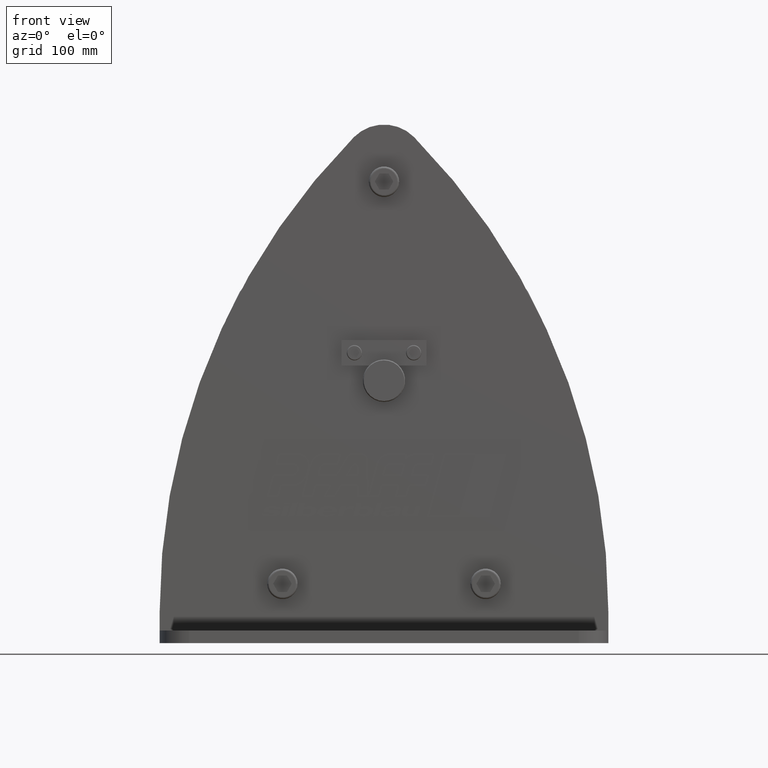
[diagram: clean part render]
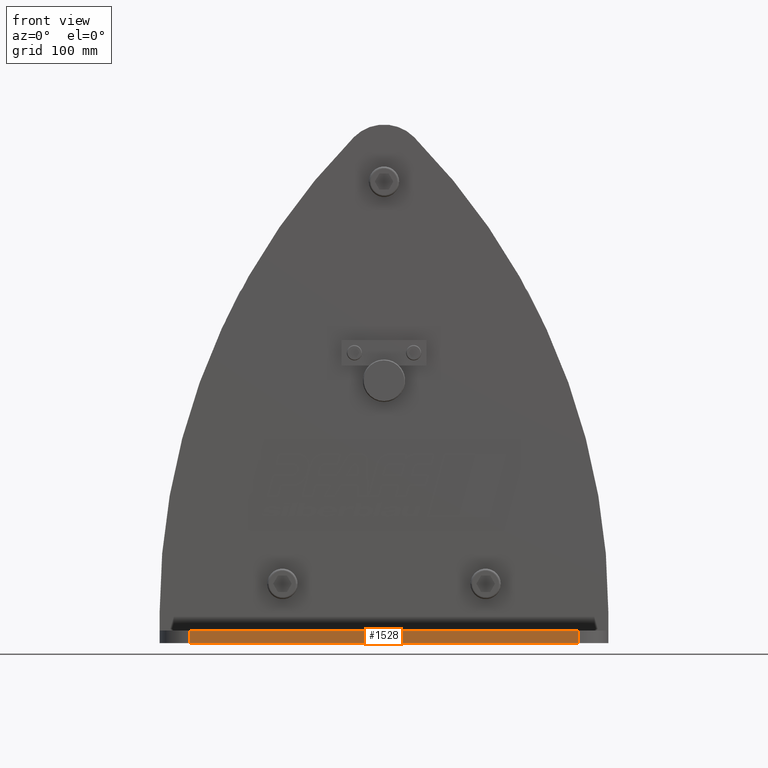
[diagram: same view with one face highlighted and labeled with its STEP entity id]
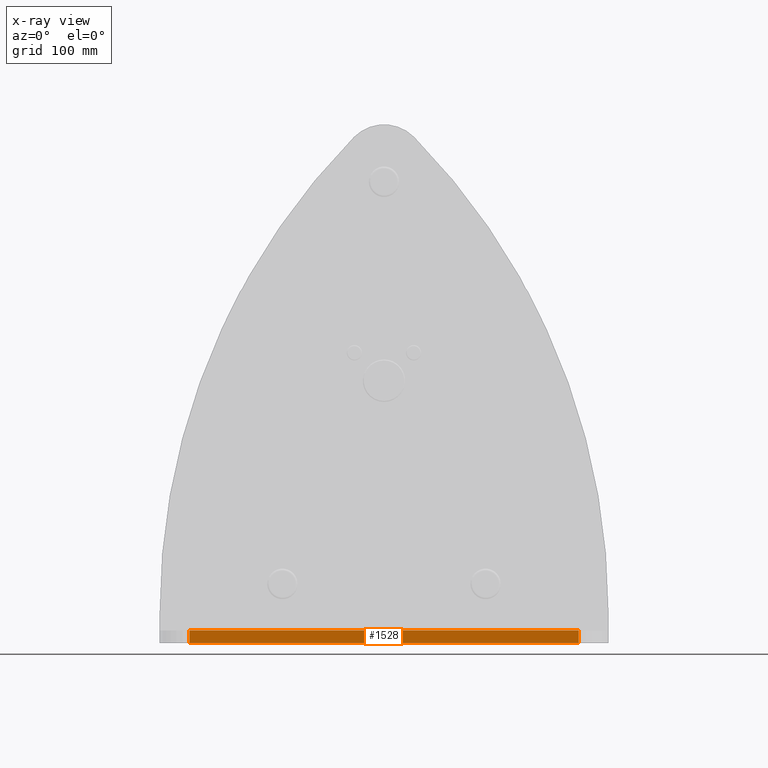
[diagram: x-ray of the same camera — body ghosted, the highlighted face saturated]
A machine part, front view. The second image highlights one B-rep face of the part: STEP entity #1528.
The next image is the same camera in x-ray: the body ghosted, the highlighted face saturated — about 0% of this face is hidden behind the body in this view.
In plain terms, the highlighted planar face has unit normal (0, -1, 0).
Its self-contained STEP definition (entity closure, byte-faithful):
#1528=ADVANCED_FACE('',(#3317),#3318,.T.);
#3317=FACE_OUTER_BOUND('',#5349,.T.);
#3318=PLANE('',#5350);
#5349=EDGE_LOOP('',(#10185,#10186,#10187,#10188));
#5350=AXIS2_PLACEMENT_3D('',#10189,#10190,#10191);
#10185=ORIENTED_EDGE('',*,*,#13903,.T.);
#10186=ORIENTED_EDGE('',*,*,#13905,.F.);
#10187=ORIENTED_EDGE('',*,*,#13883,.F.);
#10188=ORIENTED_EDGE('',*,*,#13907,.T.);
#10189=CARTESIAN_POINT('',(-3.80850906367414E-012,-150.5,-310.0));
#10190=DIRECTION('',(0.0,-1.0,0.0));
#10191=DIRECTION('',(1.0,0.0,0.0));
#13883=EDGE_CURVE('',#17247,#17249,#17250,.T.);
#13903=EDGE_CURVE('',#17277,#17279,#17281,.T.);
#13905=EDGE_CURVE('',#17249,#17279,#17283,.T.);
#13907=EDGE_CURVE('',#17247,#17277,#17285,.T.);
#17247=VERTEX_POINT('',#24817);
#17249=VERTEX_POINT('',#24819);
#17250=LINE('',#24820,#24821);
#17277=VERTEX_POINT('',#24856);
#17279=VERTEX_POINT('',#24858);
#17281=LINE('',#24860,#24861);
#17283=LINE('',#24863,#24864);
#17285=LINE('',#24866,#24867);
#24817=CARTESIAN_POINT('',(229.999999999992,-150.5,-310.0));
#24819=CARTESIAN_POINT('',(-230.0,-150.5,-310.0));
#24820=CARTESIAN_POINT('',(230.0,-150.5,-310.0));
#24821=VECTOR('',#29028,1.0);
#24856=CARTESIAN_POINT('',(229.999999999992,-150.5,-295.0));
#24858=CARTESIAN_POINT('',(-230.0,-150.5,-295.0));
#24860=CARTESIAN_POINT('',(230.0,-150.5,-295.0));
#24861=VECTOR('',#29058,1.0);
#24863=CARTESIAN_POINT('',(-230.0,-150.5,-310.0));
#24864=VECTOR('',#29059,1.0);
#24866=CARTESIAN_POINT('',(229.999999999992,-150.5,-310.0));
#24867=VECTOR('',#29060,1.0);
#29028=DIRECTION('',(-1.0,0.0,0.0));
#29058=DIRECTION('',(-1.0,0.0,0.0));
#29059=DIRECTION('',(0.0,0.0,1.0));
#29060=DIRECTION('',(0.0,0.0,1.0));